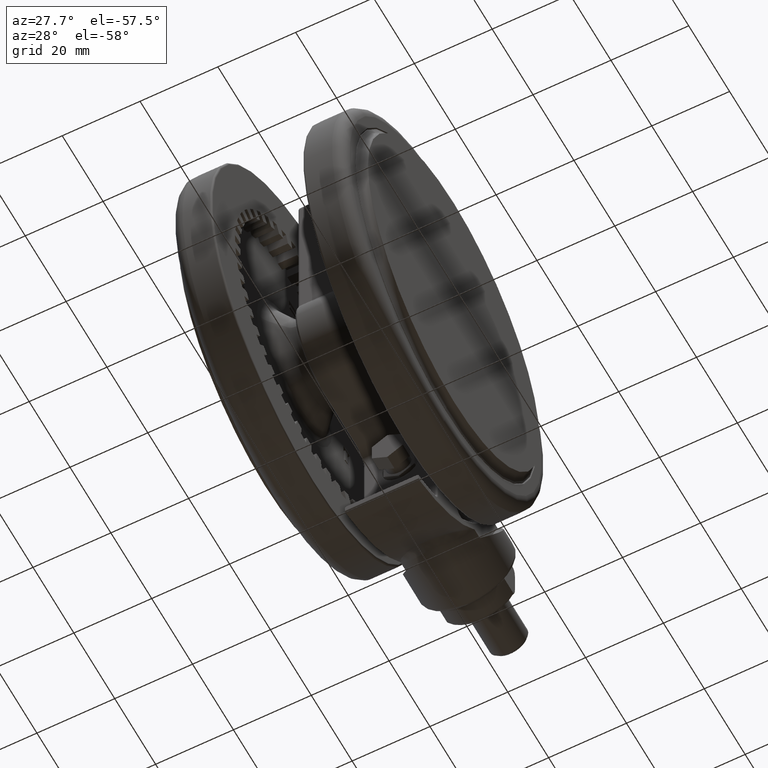
[diagram: clean part render]
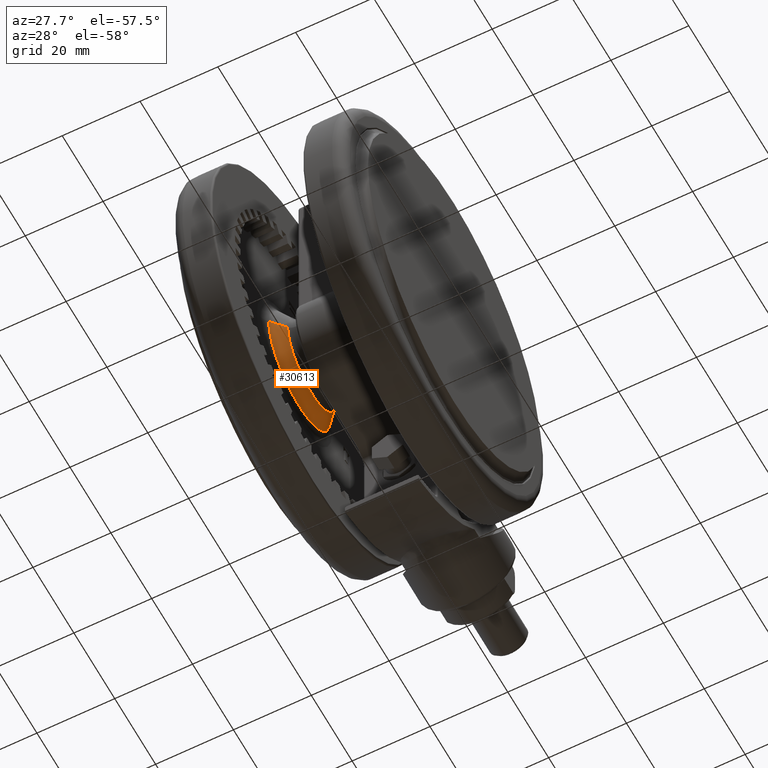
[diagram: same view with one face highlighted and labeled with its STEP entity id]
A machine part, auxiliary view. The second image highlights one B-rep face of the part: STEP entity #30613.
In plain terms, the highlighted conical surface has half-angle 47.726 deg.
Its self-contained STEP definition (entity closure, byte-faithful):
#775 = EDGE_CURVE ( 'NONE', #2966, #18000, #4406, .T. ) ;
#922 = DIRECTION ( 'NONE',  ( -1.834509741212626800E-034, -6.566365079556178500E-017, 1.000000000000000000 ) ) ;
#2084 = CARTESIAN_POINT ( 'NONE',  ( -2.906771090363627100E-014, -15.06967040367769600, -39.69970036697979800 ) ) ;
#2274 = DIRECTION ( 'NONE',  ( 4.413456915335268400E-017, -1.000000000000000000, 0.0000000000000000000 ) ) ;
#2305 = CARTESIAN_POINT ( 'NONE',  ( -2.724120246452374500E-014, -11.65465441200737500, -36.59514037455224400 ) ) ;
#2966 = VERTEX_POINT ( 'NONE', #12834 ) ;
#4406 = LINE ( 'NONE', #29329, #16895 ) ;
#5422 = ORIENTED_EDGE ( 'NONE', *, *, #10727, .T. ) ;
#5680 = ORIENTED_EDGE ( 'NONE', *, *, #27802, .T. ) ;
#5742 = AXIS2_PLACEMENT_3D ( 'NONE', #9261, #26674, #24190 ) ;
#6903 = VERTEX_POINT ( 'NONE', #2305 ) ;
#7995 = VECTOR ( 'NONE', #18428, 1000.000000000000000 ) ;
#9261 = CARTESIAN_POINT ( 'NONE',  ( -2.775557561562891400E-014, -5.909728571600559700E-016, -36.00000000000007800 ) ) ;
#10225 = VERTEX_POINT ( 'NONE', #2084 ) ;
#10727 = EDGE_CURVE ( 'NONE', #2966, #6903, #24470, .T. ) ;
#10923 = CONICAL_SURFACE ( 'NONE', #5742, 11.00000000000000000, 0.8329812666744321700 ) ;
#11098 = ORIENTED_EDGE ( 'NONE', *, *, #775, .F. ) ;
#12834 = CARTESIAN_POINT ( 'NONE',  ( -2.998170183870131300E-014, 11.65465441200737500, -36.59514037455224400 ) ) ;
#13157 = EDGE_CURVE ( 'NONE', #10225, #18000, #20776, .T. ) ;
#15376 = CARTESIAN_POINT ( 'NONE',  ( -2.849488933603877600E-014, 15.06967040367769600, -39.69970036697979800 ) ) ;
#15871 = CARTESIAN_POINT ( 'NONE',  ( -2.775557561562891400E-014, 6.340112576823545600E-016, -39.69970036697979800 ) ) ;
#16075 = EDGE_LOOP ( 'NONE', ( #11098, #5422, #5680, #29332 ) ) ;
#16895 = VECTOR ( 'NONE', #26999, 1000.000000000000000 ) ;
#17216 = DIRECTION ( 'NONE',  ( 1.834509741212626800E-034, 6.566365079556178500E-017, -1.000000000000000000 ) ) ;
#18000 = VERTEX_POINT ( 'NONE', #15376 ) ;
#18374 = DIRECTION ( 'NONE',  ( 4.413456915335252400E-017, -1.000000000000000000, 0.0000000000000000000 ) ) ;
#18428 = DIRECTION ( 'NONE',  ( 3.265693633863008800E-017, -0.7399400733959440300, -0.6726727939963120800 ) ) ;
#20761 = AXIS2_PLACEMENT_3D ( 'NONE', #32193, #17216, #2274 ) ;
#20776 = CIRCLE ( 'NONE', #22755, 15.06967040367769400 ) ;
#22755 = AXIS2_PLACEMENT_3D ( 'NONE', #15871, #922, #18374 ) ;
#24190 = DIRECTION ( 'NONE',  ( 4.413456915335265900E-017, -1.000000000000000000, 0.0000000000000000000 ) ) ;
#24470 = CIRCLE ( 'NONE', #20761, 11.65465441200737500 ) ;
#25939 = CARTESIAN_POINT ( 'NONE',  ( -2.727009535494203400E-014, -11.00000000000000000, -36.00000000000007800 ) ) ;
#26300 = LINE ( 'NONE', #25939, #7995 ) ;
#26674 = DIRECTION ( 'NONE',  ( 1.834509741212626800E-034, 6.566365079556178500E-017, -1.000000000000000000 ) ) ;
#26999 = DIRECTION ( 'NONE',  ( -1.232734605831501400E-016, 0.7399400733959440300, -0.6726727939963120800 ) ) ;
#27802 = EDGE_CURVE ( 'NONE', #6903, #10225, #26300, .T. ) ;
#29329 = CARTESIAN_POINT ( 'NONE',  ( -2.958816735537788000E-014, 11.00000000000000000, -36.00000000000007800 ) ) ;
#29332 = ORIENTED_EDGE ( 'NONE', *, *, #13157, .T. ) ;
#30613 = ADVANCED_FACE ( 'NONE', ( #31660 ), #10923, .T. ) ;
#31660 = FACE_OUTER_BOUND ( 'NONE', #16075, .T. ) ;
#32193 = CARTESIAN_POINT ( 'NONE',  ( -2.775557561562891400E-014, -5.518937674311233600E-016, -36.59514037455224400 ) ) ;